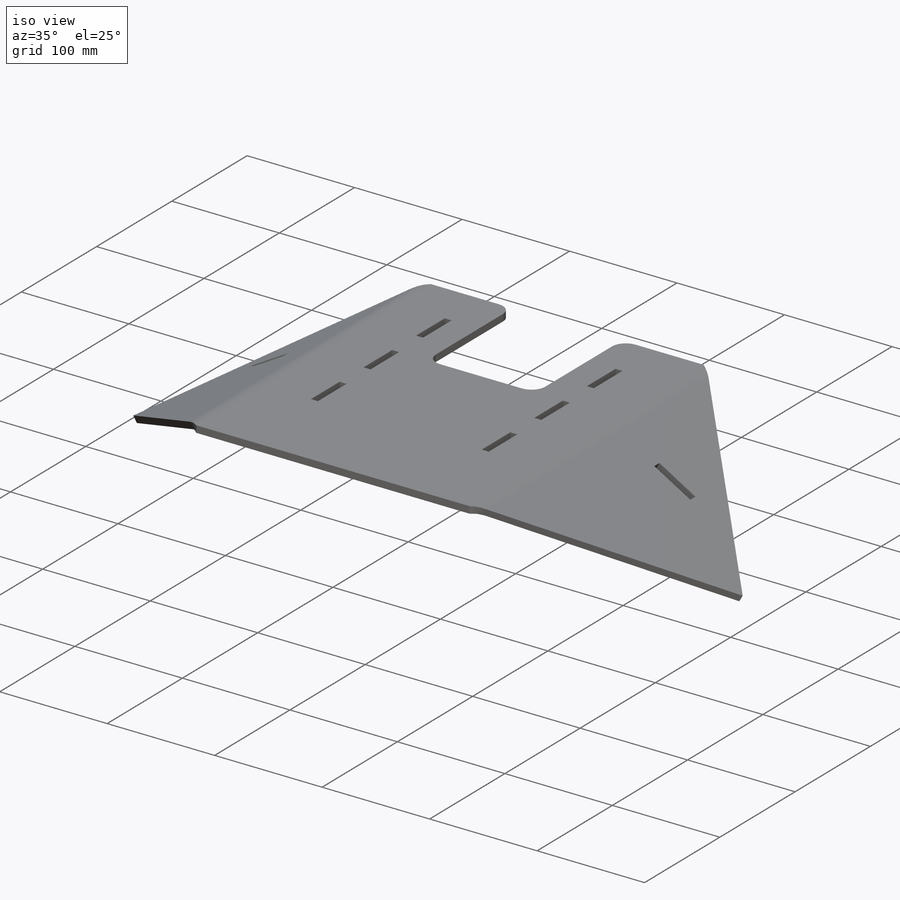
[diagram: iso view]
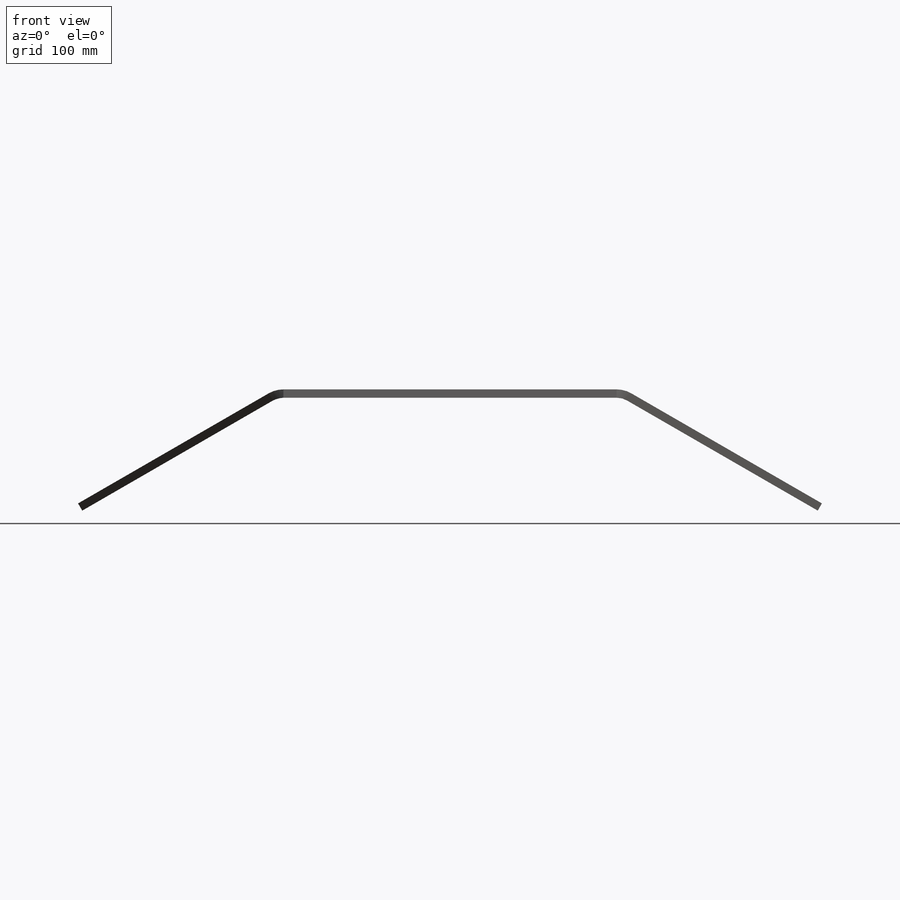
[diagram: front view]
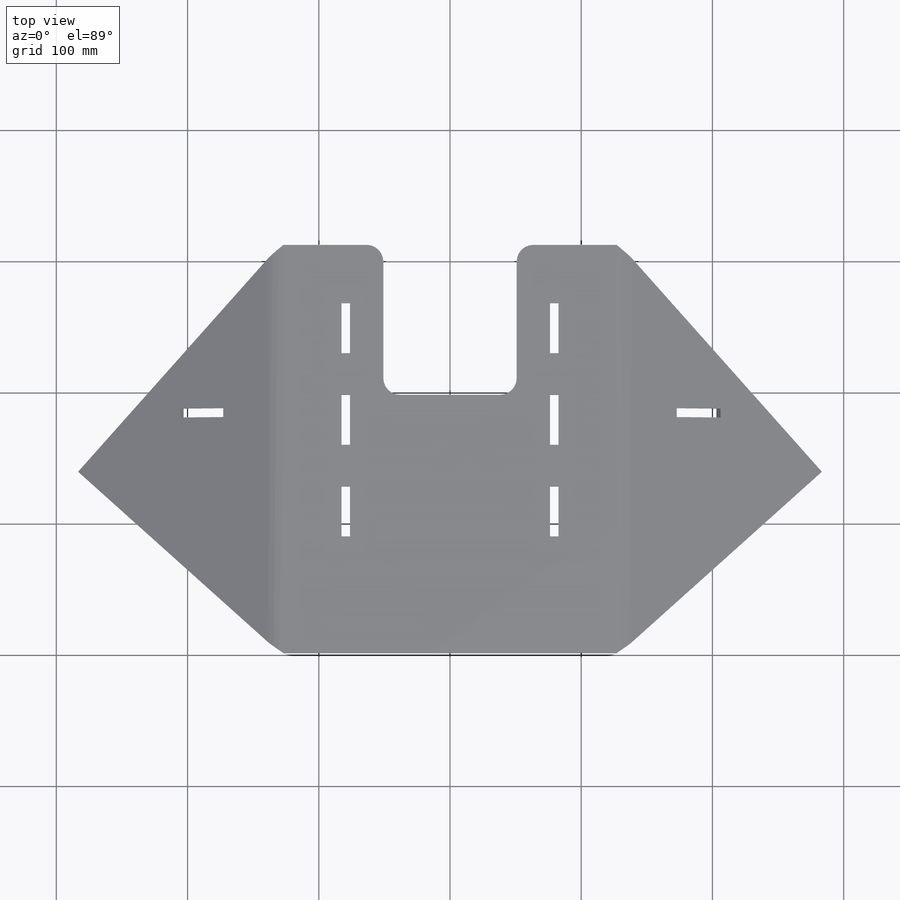
[diagram: top view]
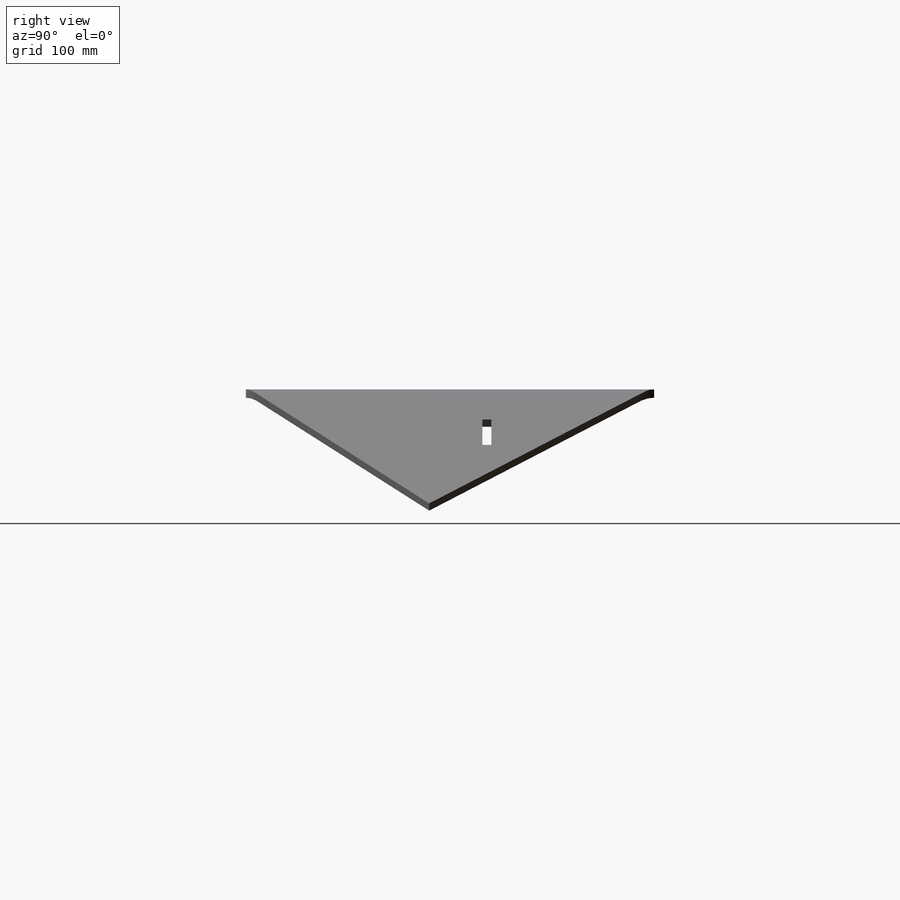
[diagram: right view]
SOLIDWORKS PART (.sldprt)
format: sldprt  version: not decoded by parser v0  size: 835,584 bytes
history: native  units: mm
features: sketch x17, fillet x5, sheet_metal_op x5, cut_extrude x3, mirror x2, material x1, extrude x1 + 9 further entries (+13 scaffold rows collapsed; 1 parser-record rows omitted)
feature tree (57):
  scaffold x13  (default folders/planes/origin — collapsed)
  material  "Plain Carbon Steel"
  sketch  "Sketch1"  dims[D1=254.0mm D2=311.15mm D3=177.8mm D4=127.0mm D5=139.7mm D6=177.8mm]
  extrude  "Boss-Extrude1"  Depth=6.35mm
  sketch  "Sketch2"  dims[D1=88.9mm D2=38.1mm D3=38.1mm D4=38.1mm D5=31.75mm D6=31.75mm D7=76.2mm D8=6.477mm]
  cut_extrude  "Cut-Extrude1"  [1 undecoded]
  mirror  "Mirror1"
  sketch  "Sketch7"
  parser-record x1  (decoder bookkeeping rows leaked as tree rows — omitted from the tree; the rows remain in map.json)
  "SketchBend2"
  sketch  "Sketch8"  dims[D1=50.8mm D2=50.8mm D3=114.3mm]
  cut_extrude  "Cut-Extrude2"  [1 undecoded]
  fillet  "Fillet1"  Radius=12.7mm
  sketch  "Sketch9"  dims[c1.D1=0.254mm c1.D2=0.254mm c1.D3=1.5875mm c1.D4=1.5875mm c2.D1=9.525mm c2.D2=38.1mm c3.D1=0.254mm c3.D2=0.254mm c3.D3=0.254mm c3.D4=0.254mm c4.D1=0.254mm]
  cut_extrude  "Cut-Extrude3"  [1 undecoded]
  mirror  "Mirror2"
  sketch  "Bend-Lines1"
  sketch  "Bounding-Box1"
  sheet_metal_op  "Sheet-Metal(4)"
  "Flat-Pattern(4)"
  sketch  "Bend-Lines2"
  sketch  "Bounding-Box2"  dims[Sketch Transformation1=0.0]
  "Flatten-<SketchBend2>1"
  fillet  "Sheet-Metal(5)"  Radius=15.875mm
  sheet_metal_op  "Flat-Pattern(4)"
  sketch  "Bend-Lines2"
  sketch  "Bounding-Box2"  dims[Sketch Transformation1=0.0]
  "Flatten-<SketchBend1>1"
  "Flatten-<SketchBend2>1"
  fillet  "Sheet-Metal(6)"  Radius=15.875mm
  sheet_metal_op  "Flat-Pattern(4)"
  sketch  "Bend-Lines2"
  sketch  "Bounding-Box2"  dims[Sketch Transformation1=0.0]
  fillet  "Sheet-Metal(7)"  Radius=15.875mm
  sheet_metal_op  "Flat-Pattern(4)"
  sketch  "Bend-Lines2"
  sketch  "Bounding-Box2"
  "Flatten-<SketchBend1>1"
  "Flatten-<SketchBend2>1"  Sketch Transformation1=0
  fillet  "Sheet-Metal(8)"  Radius=15.875mm
  sheet_metal_op  "Flat-Pattern(4)"
  sketch  "Bend-Lines3"
  sketch  "Bounding-Box3"  dims[Sketch Transformation3=0.0]
  "Flatten-<SketchBend1>2"
  "Flatten-<SketchBend2>2"
decode coverage: 14 of 33 modeling features carry decoded parameters; 9 rows unclassified (native names shown)
note: 3 parameter values undecoded
summary: no parameter record found for 3 features
note: suppression state not decoded; provenance and decode notes live in map.json
